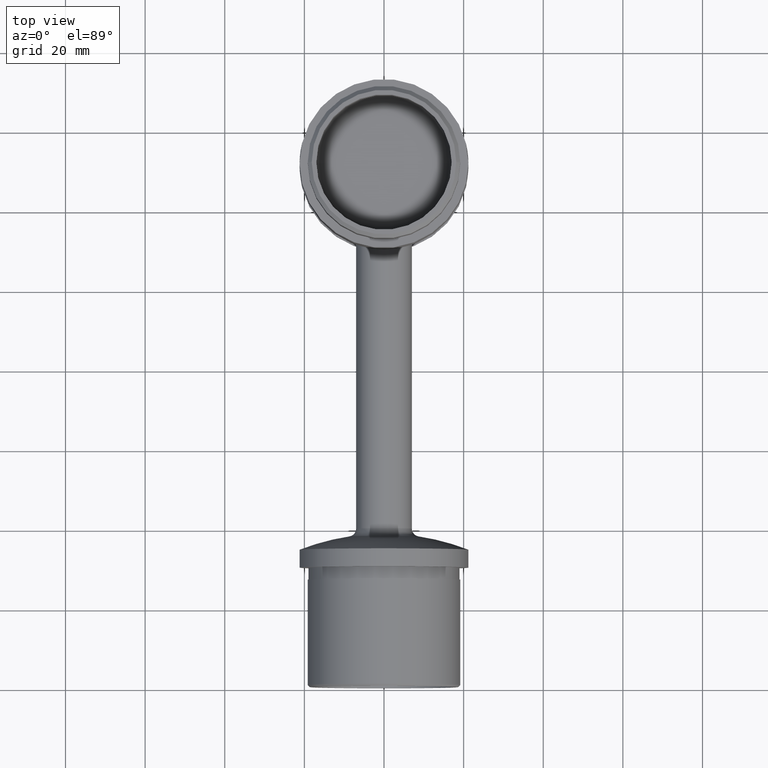
[diagram: clean part render]
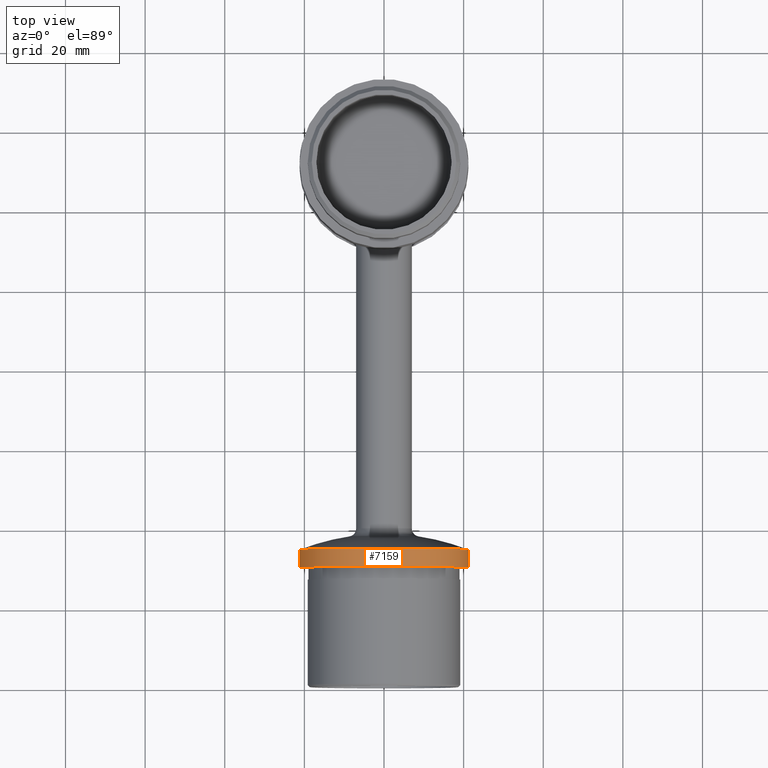
[diagram: same view with one face highlighted and labeled with its STEP entity id]
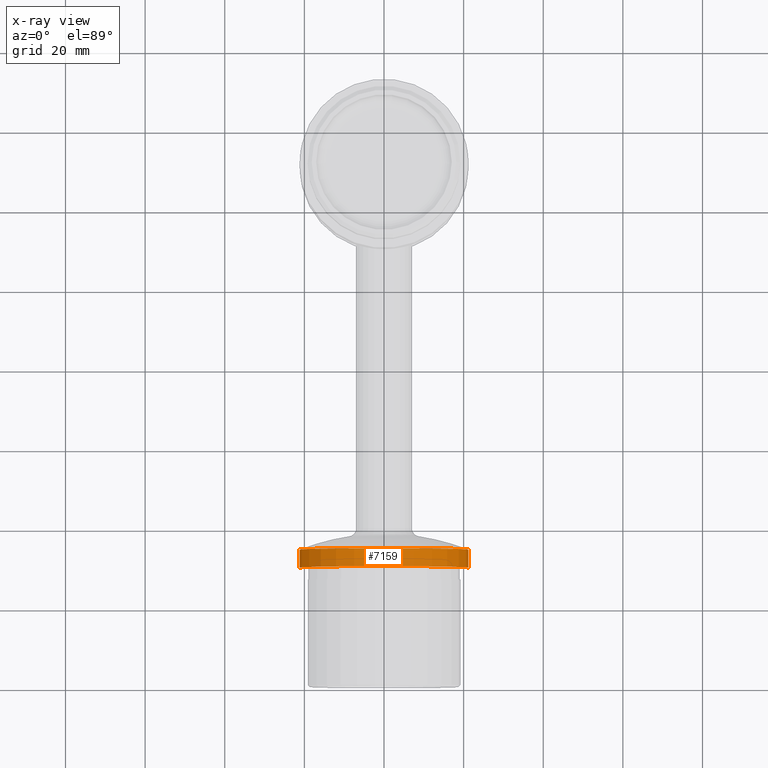
[diagram: x-ray of the same camera — body ghosted, the highlighted face saturated]
A machine part, top view. The second image highlights one B-rep face of the part: STEP entity #7159.
The next image is the same camera in x-ray: the body ghosted, the highlighted face saturated — about 0% of this face is hidden behind the body in this view.
In plain terms, the highlighted cylindrical surface (partial cylindrical patch) has radius 21.2 mm, axis along (-0, 1, 0).
Its self-contained STEP definition (entity closure, byte-faithful):
#1434 = VERTEX_POINT ( 'NONE', #6223 ) ;
#1462 = CARTESIAN_POINT ( 'NONE',  ( -21.19999999999999574, 135.8000000000000114, 0.000000000000000000 ) ) ;
#2069 = DIRECTION ( 'NONE',  ( -8.356086107788088699E-18, 1.000000000000000000, -0.000000000000000000 ) ) ;
#3522 = VERTEX_POINT ( 'NONE', #15324 ) ;
#3952 = CARTESIAN_POINT ( 'NONE',  ( 21.19999999999999574, 135.8000000000000114, 2.596251214192388375E-15 ) ) ;
#4382 = ORIENTED_EDGE ( 'NONE', *, *, #12412, .T. ) ;
#4543 = CIRCLE ( 'NONE', #8028, 21.19999999999999574 ) ;
#4802 = CARTESIAN_POINT ( 'NONE',  ( 1.671217221557632839E-17, 30.00000000000000000, 0.000000000000000000 ) ) ;
#4870 = DIRECTION ( 'NONE',  ( -8.356086107788088699E-18, 1.000000000000000000, -0.000000000000000000 ) ) ;
#5558 = VERTEX_POINT ( 'NONE', #10079 ) ;
#6223 = CARTESIAN_POINT ( 'NONE',  ( -21.19999999999999929, 30.00000000000000000, 0.000000000000000000 ) ) ;
#6283 = EDGE_CURVE ( 'NONE', #8371, #5558, #9526, .T. ) ;
#6600 = ORIENTED_EDGE ( 'NONE', *, *, #7873, .F. ) ;
#6818 = DIRECTION ( 'NONE',  ( -1.000000000000000000, 0.000000000000000000, 0.000000000000000000 ) ) ;
#7159 = ADVANCED_FACE ( 'NONE', ( #10799 ), #18035, .T. ) ;
#7573 = DIRECTION ( 'NONE',  ( -1.000000000000000000, 0.000000000000000000, 0.000000000000000000 ) ) ;
#7873 = EDGE_CURVE ( 'NONE', #3522, #5558, #4543, .T. ) ;
#8028 = AXIS2_PLACEMENT_3D ( 'NONE', #9234, #12799, #10873 ) ;
#8371 = VERTEX_POINT ( 'NONE', #20875 ) ;
#8766 = VECTOR ( 'NONE', #2069, 1000.000000000000000 ) ;
#9234 = CARTESIAN_POINT ( 'NONE',  ( -2.089021526947012160E-17, 34.50000000000000000, 0.000000000000000000 ) ) ;
#9347 = EDGE_LOOP ( 'NONE', ( #4382, #17517, #6600, #16489 ) ) ;
#9526 = LINE ( 'NONE', #3952, #8766 ) ;
#10079 = CARTESIAN_POINT ( 'NONE',  ( 21.19999999999999574, 34.50000000000000000, 2.596251214192388375E-15 ) ) ;
#10347 = CARTESIAN_POINT ( 'NONE',  ( -8.673617379884035472E-16, 135.8000000000000114, 0.000000000000000000 ) ) ;
#10799 = FACE_OUTER_BOUND ( 'NONE', #9347, .T. ) ;
#10873 = DIRECTION ( 'NONE',  ( -1.000000000000000000, 0.000000000000000000, 0.000000000000000000 ) ) ;
#11451 = AXIS2_PLACEMENT_3D ( 'NONE', #10347, #13441, #6818 ) ;
#12412 = EDGE_CURVE ( 'NONE', #1434, #8371, #17142, .T. ) ;
#12799 = DIRECTION ( 'NONE',  ( -8.356086107788088699E-18, 1.000000000000000000, -0.000000000000000000 ) ) ;
#12940 = VECTOR ( 'NONE', #4870, 1000.000000000000000 ) ;
#13216 = LINE ( 'NONE', #1462, #12940 ) ;
#13441 = DIRECTION ( 'NONE',  ( -8.356086107788088699E-18, 1.000000000000000000, -0.000000000000000000 ) ) ;
#14192 = EDGE_CURVE ( 'NONE', #1434, #3522, #13216, .T. ) ;
#15324 = CARTESIAN_POINT ( 'NONE',  ( -21.19999999999999574, 34.50000000000000000, 0.000000000000000000 ) ) ;
#16346 = DIRECTION ( 'NONE',  ( -8.356086107788088699E-18, 1.000000000000000000, -0.000000000000000000 ) ) ;
#16489 = ORIENTED_EDGE ( 'NONE', *, *, #14192, .F. ) ;
#17142 = CIRCLE ( 'NONE', #19681, 21.19999999999999929 ) ;
#17517 = ORIENTED_EDGE ( 'NONE', *, *, #6283, .T. ) ;
#18035 = CYLINDRICAL_SURFACE ( 'NONE', #11451, 21.19999999999999574 ) ;
#19681 = AXIS2_PLACEMENT_3D ( 'NONE', #4802, #16346, #7573 ) ;
#20875 = CARTESIAN_POINT ( 'NONE',  ( 21.19999999999999929, 30.00000000000000000, 2.596251214192388770E-15 ) ) ;